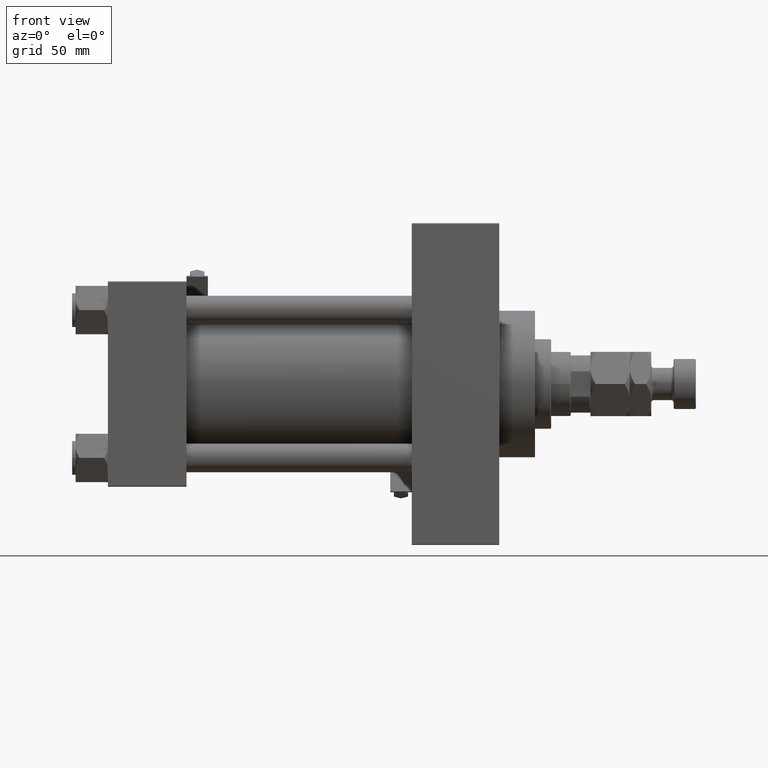
[diagram: clean part render]
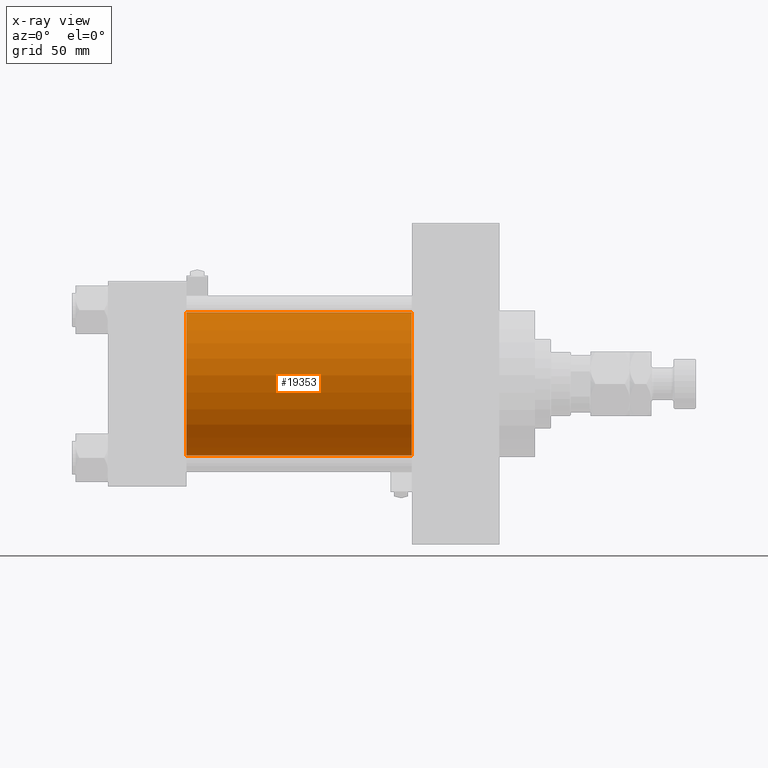
[diagram: x-ray — body ghosted, one internal face saturated and labeled with its STEP entity id]
A machine part, front view, then the same camera in x-ray: the body is ghosted and one INTERNAL B-rep face — a face not visible from any outside direction — is saturated and labeled: STEP entity #19353.
In plain terms, the highlighted cylindrical surface (partial cylindrical patch) has radius 40 mm, axis along (-1, -0, -0).
Its self-contained STEP definition (entity closure, byte-faithful):
#251 = LINE ( 'NONE', #2998, #26604 ) ;
#2998 = CARTESIAN_POINT ( 'NONE',  ( 169.9999999999999716, -2.602085213965210642E-15, 40.00000000000000000 ) ) ;
#3936 = DIRECTION ( 'NONE',  ( -1.000000000000000000, -0.000000000000000000, -0.000000000000000000 ) ) ;
#4643 = VERTEX_POINT ( 'NONE', #24435 ) ;
#5422 = VERTEX_POINT ( 'NONE', #10391 ) ;
#5432 = LINE ( 'NONE', #44721, #34321 ) ;
#6022 = CIRCLE ( 'NONE', #43514, 40.00000000000000000 ) ;
#6312 = VERTEX_POINT ( 'NONE', #38667 ) ;
#6369 = DIRECTION ( 'NONE',  ( 1.000000000000000000, 0.000000000000000000, 0.000000000000000000 ) ) ;
#6596 = EDGE_CURVE ( 'NONE', #5422, #4643, #5432, .T. ) ;
#10391 = CARTESIAN_POINT ( 'NONE',  ( 169.9999999999999716, 2.296501982624201990E-15, -40.00000000000000000 ) ) ;
#10907 = AXIS2_PLACEMENT_3D ( 'NONE', #25799, #37037, #14054 ) ;
#11271 = ORIENTED_EDGE ( 'NONE', *, *, #6596, .T. ) ;
#12556 = CIRCLE ( 'NONE', #10907, 40.00000000000000000 ) ;
#12836 = DIRECTION ( 'NONE',  ( -1.000000000000000000, -0.000000000000000000, -0.000000000000000000 ) ) ;
#12935 = EDGE_CURVE ( 'NONE', #44206, #5422, #6022, .T. ) ;
#14054 = DIRECTION ( 'NONE',  ( 0.000000000000000000, 0.000000000000000000, -1.000000000000000000 ) ) ;
#19252 = ORIENTED_EDGE ( 'NONE', *, *, #12935, .T. ) ;
#19353 = ADVANCED_FACE ( 'NONE', ( #27913 ), #24095, .F. ) ;
#19499 = DIRECTION ( 'NONE',  ( 0.000000000000000000, 0.000000000000000000, 1.000000000000000000 ) ) ;
#24095 = CYLINDRICAL_SURFACE ( 'NONE', #40715, 40.00000000000000000 ) ;
#24435 = CARTESIAN_POINT ( 'NONE',  ( 44.00000000000000000, 2.296501982624201990E-15, -40.00000000000000000 ) ) ;
#25799 = CARTESIAN_POINT ( 'NONE',  ( 44.00000000000000000, -2.602085213965210642E-15, 0.000000000000000000 ) ) ;
#26604 = VECTOR ( 'NONE', #47951, 1000.000000000000000 ) ;
#27913 = FACE_OUTER_BOUND ( 'NONE', #42287, .T. ) ;
#29766 = CARTESIAN_POINT ( 'NONE',  ( 169.9999999999999716, -2.602085213965210642E-15, 40.00000000000000000 ) ) ;
#32722 = EDGE_CURVE ( 'NONE', #6312, #4643, #12556, .T. ) ;
#34166 = DIRECTION ( 'NONE',  ( 0.000000000000000000, 0.000000000000000000, -1.000000000000000000 ) ) ;
#34321 = VECTOR ( 'NONE', #12836, 1000.000000000000000 ) ;
#37037 = DIRECTION ( 'NONE',  ( 1.000000000000000000, 0.000000000000000000, 0.000000000000000000 ) ) ;
#38667 = CARTESIAN_POINT ( 'NONE',  ( 44.00000000000000000, -2.602085213965210642E-15, 40.00000000000000000 ) ) ;
#40715 = AXIS2_PLACEMENT_3D ( 'NONE', #46812, #3936, #19499 ) ;
#42287 = EDGE_LOOP ( 'NONE', ( #19252, #11271, #43466, #48627 ) ) ;
#43466 = ORIENTED_EDGE ( 'NONE', *, *, #32722, .F. ) ;
#43514 = AXIS2_PLACEMENT_3D ( 'NONE', #45659, #6369, #34166 ) ;
#44206 = VERTEX_POINT ( 'NONE', #29766 ) ;
#44721 = CARTESIAN_POINT ( 'NONE',  ( 169.9999999999999716, 2.296501982624201990E-15, -40.00000000000000000 ) ) ;
#45659 = CARTESIAN_POINT ( 'NONE',  ( 169.9999999999999716, -2.602085213965210642E-15, 0.000000000000000000 ) ) ;
#46812 = CARTESIAN_POINT ( 'NONE',  ( 169.9999999999999716, -2.602085213965210642E-15, 0.000000000000000000 ) ) ;
#47951 = DIRECTION ( 'NONE',  ( -1.000000000000000000, -0.000000000000000000, -0.000000000000000000 ) ) ;
#48627 = ORIENTED_EDGE ( 'NONE', *, *, #50398, .F. ) ;
#50398 = EDGE_CURVE ( 'NONE', #44206, #6312, #251, .T. ) ;